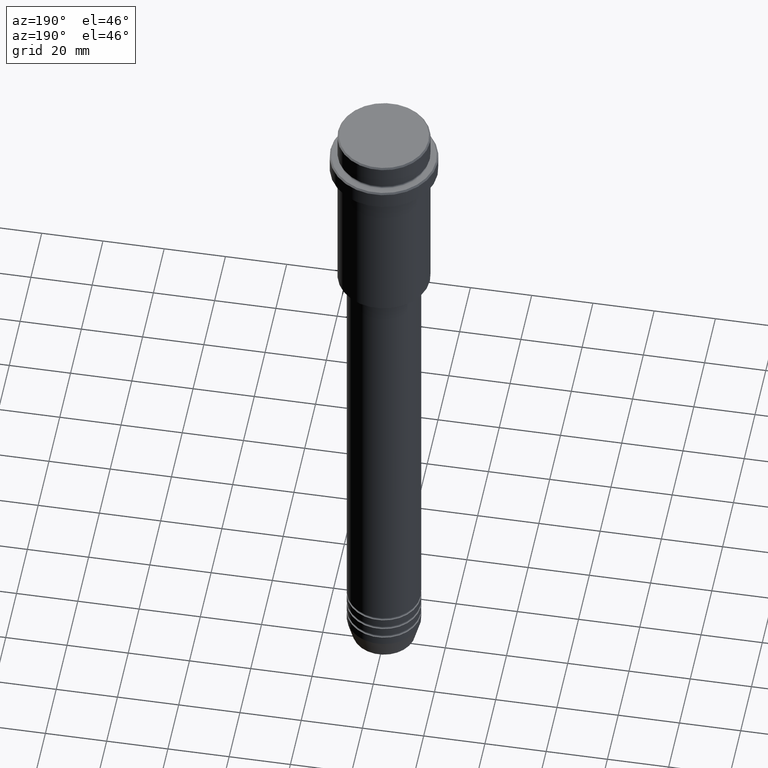
[diagram: clean part render]
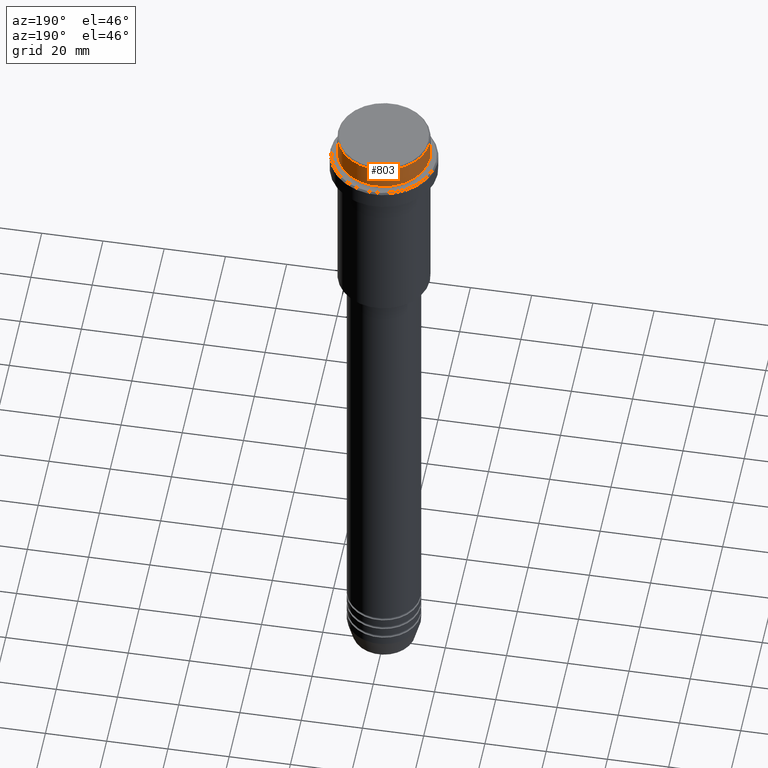
[diagram: same view with one face highlighted and labeled with its STEP entity id]
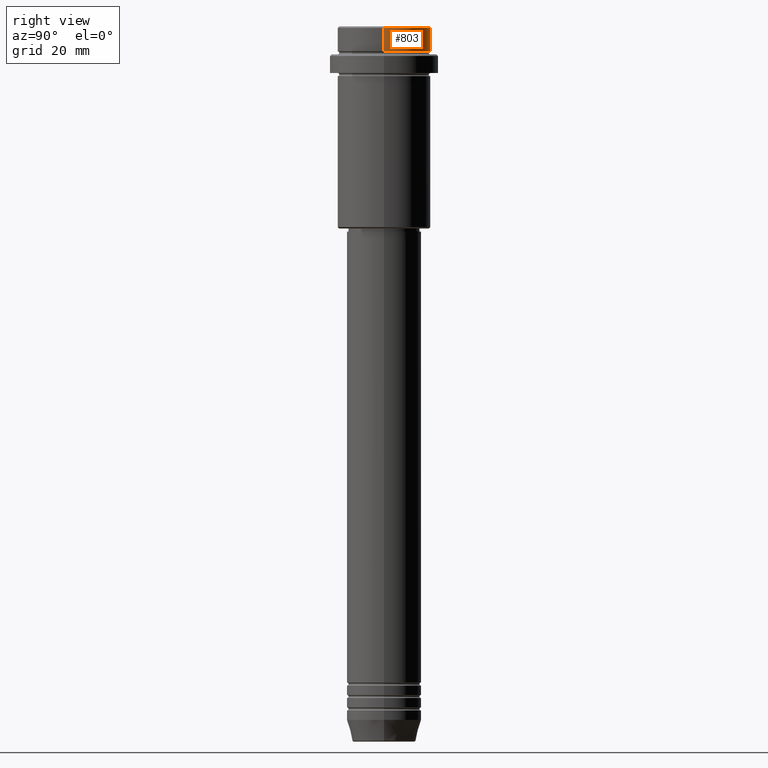
[diagram: same view with one face highlighted and labeled with its STEP entity id]
A machine part, auxiliary view. The second image highlights one B-rep face of the part: STEP entity #803.
A second angle (right view) of the same face is appended — the face is thin or edge-on in the first view.
In plain terms, the highlighted cylindrical surface (partial cylindrical patch) has radius 15 mm, axis along (-0, -0, 1).
Its self-contained STEP definition (entity closure, byte-faithful):
#33 = AXIS2_PLACEMENT_3D ( 'NONE', #1230, #263, #1124 ) ;
#36 = EDGE_LOOP ( 'NONE', ( #806, #1251, #976, #1268 ) ) ;
#80 = DIRECTION ( 'NONE',  ( -0.000000000000000000, -0.000000000000000000, 1.000000000000000000 ) ) ;
#84 = CIRCLE ( 'NONE', #392, 15.00000000000000000 ) ;
#139 = VERTEX_POINT ( 'NONE', #191 ) ;
#167 = CARTESIAN_POINT ( 'NONE',  ( 0.000000000000000000, 0.000000000000000000, -7.999999999999998224 ) ) ;
#191 = CARTESIAN_POINT ( 'NONE',  ( -15.00000000000000000, 1.836970198721029589E-15, -7.999999999999998224 ) ) ;
#263 = DIRECTION ( 'NONE',  ( -0.000000000000000000, -0.000000000000000000, 1.000000000000000000 ) ) ;
#314 = VERTEX_POINT ( 'NONE', #471 ) ;
#324 = CARTESIAN_POINT ( 'NONE',  ( 15.00000000000000000, 0.000000000000000000, -0.5000000000000662803 ) ) ;
#392 = AXIS2_PLACEMENT_3D ( 'NONE', #167, #858, #507 ) ;
#431 = CARTESIAN_POINT ( 'NONE',  ( -15.00000000000000000, 1.836970198721029589E-15, -0.5000000000000662803 ) ) ;
#471 = CARTESIAN_POINT ( 'NONE',  ( 15.00000000000000000, 0.000000000000000000, -7.999999999999998224 ) ) ;
#499 = AXIS2_PLACEMENT_3D ( 'NONE', #1069, #518, #955 ) ;
#507 = DIRECTION ( 'NONE',  ( 1.000000000000000000, 0.000000000000000000, 0.000000000000000000 ) ) ;
#518 = DIRECTION ( 'NONE',  ( 0.000000000000000000, 0.000000000000000000, -1.000000000000000000 ) ) ;
#527 = CIRCLE ( 'NONE', #499, 15.00000000000000000 ) ;
#581 = CYLINDRICAL_SURFACE ( 'NONE', #33, 15.00000000000000000 ) ;
#609 = EDGE_CURVE ( 'NONE', #314, #139, #84, .T. ) ;
#649 = CARTESIAN_POINT ( 'NONE',  ( 15.00000000000000000, 0.000000000000000000, 0.000000000000000000 ) ) ;
#700 = FACE_OUTER_BOUND ( 'NONE', #36, .T. ) ;
#752 = LINE ( 'NONE', #649, #1270 ) ;
#783 = VERTEX_POINT ( 'NONE', #324 ) ;
#803 = ADVANCED_FACE ( 'NONE', ( #700 ), #581, .T. ) ;
#806 = ORIENTED_EDGE ( 'NONE', *, *, #609, .T. ) ;
#858 = DIRECTION ( 'NONE',  ( -0.000000000000000000, -0.000000000000000000, 1.000000000000000000 ) ) ;
#873 = VECTOR ( 'NONE', #80, 1000.000000000000000 ) ;
#955 = DIRECTION ( 'NONE',  ( 1.000000000000000000, 0.000000000000000000, 0.000000000000000000 ) ) ;
#976 = ORIENTED_EDGE ( 'NONE', *, *, #1049, .T. ) ;
#1049 = EDGE_CURVE ( 'NONE', #1073, #783, #527, .T. ) ;
#1059 = CARTESIAN_POINT ( 'NONE',  ( -15.00000000000000000, 1.836970198721029589E-15, 0.000000000000000000 ) ) ;
#1069 = CARTESIAN_POINT ( 'NONE',  ( 0.000000000000000000, 0.000000000000000000, -0.5000000000000662803 ) ) ;
#1070 = EDGE_CURVE ( 'NONE', #314, #783, #752, .T. ) ;
#1073 = VERTEX_POINT ( 'NONE', #431 ) ;
#1104 = EDGE_CURVE ( 'NONE', #139, #1073, #1288, .T. ) ;
#1124 = DIRECTION ( 'NONE',  ( 1.000000000000000000, 0.000000000000000000, 0.000000000000000000 ) ) ;
#1230 = CARTESIAN_POINT ( 'NONE',  ( 0.000000000000000000, 0.000000000000000000, 0.000000000000000000 ) ) ;
#1251 = ORIENTED_EDGE ( 'NONE', *, *, #1104, .T. ) ;
#1268 = ORIENTED_EDGE ( 'NONE', *, *, #1070, .F. ) ;
#1270 = VECTOR ( 'NONE', #1273, 1000.000000000000000 ) ;
#1273 = DIRECTION ( 'NONE',  ( -0.000000000000000000, -0.000000000000000000, 1.000000000000000000 ) ) ;
#1288 = LINE ( 'NONE', #1059, #873 ) ;